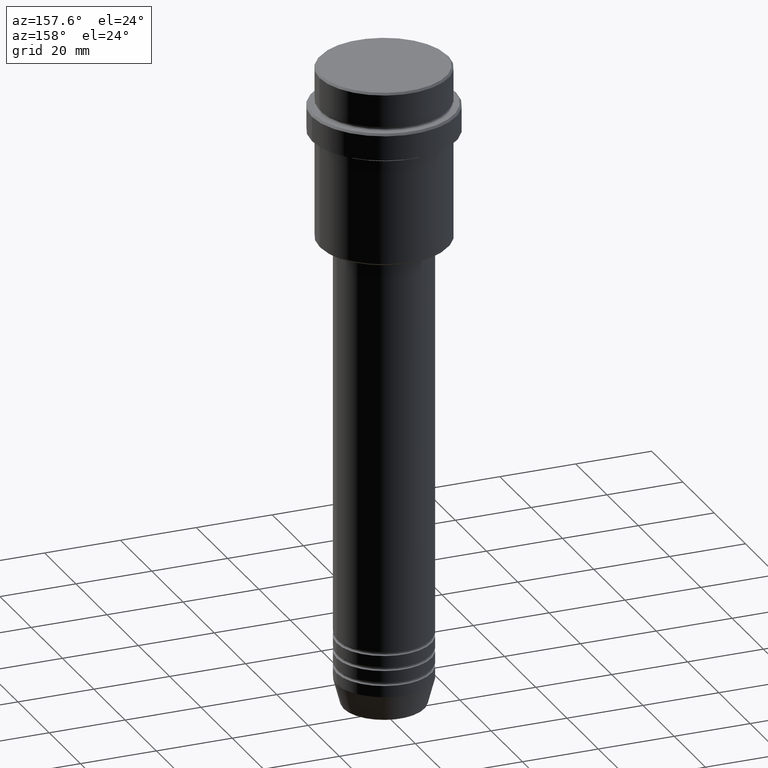
[diagram: clean part render]
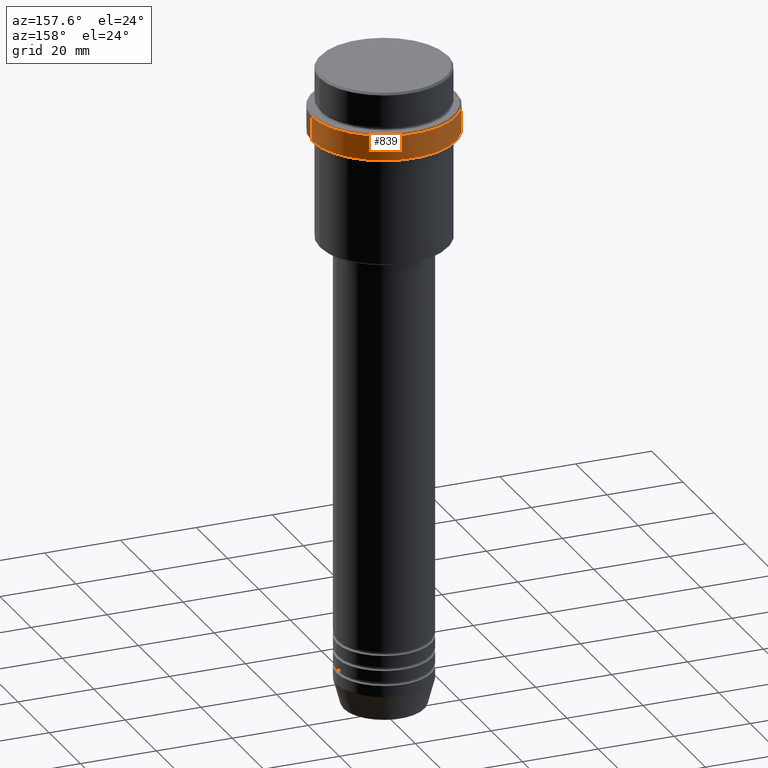
[diagram: same view with one face highlighted and labeled with its STEP entity id]
A machine part, auxiliary view. The second image highlights one B-rep face of the part: STEP entity #839.
In plain terms, the highlighted cylindrical surface (partial cylindrical patch) has radius 19 mm, axis along (-0, -0, 1).
Its self-contained STEP definition (entity closure, byte-faithful):
#7 = DIRECTION ( 'NONE',  ( 0.000000000000000000, 0.000000000000000000, -1.000000000000000000 ) ) ;
#113 = LINE ( 'NONE', #1403, #791 ) ;
#178 = VERTEX_POINT ( 'NONE', #1079 ) ;
#187 = EDGE_CURVE ( 'NONE', #178, #208, #1271, .T. ) ;
#204 = DIRECTION ( 'NONE',  ( -0.000000000000000000, -0.000000000000000000, 1.000000000000000000 ) ) ;
#208 = VERTEX_POINT ( 'NONE', #982 ) ;
#211 = VERTEX_POINT ( 'NONE', #766 ) ;
#216 = DIRECTION ( 'NONE',  ( 1.000000000000000000, 0.000000000000000000, 0.000000000000000000 ) ) ;
#259 = LINE ( 'NONE', #1371, #1410 ) ;
#280 = EDGE_LOOP ( 'NONE', ( #881, #1208, #558, #1396 ) ) ;
#300 = EDGE_CURVE ( 'NONE', #211, #208, #113, .T. ) ;
#324 = EDGE_CURVE ( 'NONE', #211, #1026, #1219, .T. ) ;
#357 = CARTESIAN_POINT ( 'NONE',  ( 0.000000000000000000, 0.000000000000000000, -17.00000000000000000 ) ) ;
#558 = ORIENTED_EDGE ( 'NONE', *, *, #187, .T. ) ;
#658 = AXIS2_PLACEMENT_3D ( 'NONE', #971, #7, #216 ) ;
#668 = DIRECTION ( 'NONE',  ( -0.000000000000000000, -0.000000000000000000, 1.000000000000000000 ) ) ;
#705 = AXIS2_PLACEMENT_3D ( 'NONE', #1351, #668, #1327 ) ;
#766 = CARTESIAN_POINT ( 'NONE',  ( 18.99999999999997868, 0.000000000000000000, -17.00000000000000000 ) ) ;
#773 = CYLINDRICAL_SURFACE ( 'NONE', #705, 18.99999999999997868 ) ;
#791 = VECTOR ( 'NONE', #204, 1000.000000000000000 ) ;
#839 = ADVANCED_FACE ( 'NONE', ( #999 ), #773, .T. ) ;
#881 = ORIENTED_EDGE ( 'NONE', *, *, #324, .T. ) ;
#964 = EDGE_CURVE ( 'NONE', #1026, #178, #259, .T. ) ;
#971 = CARTESIAN_POINT ( 'NONE',  ( 0.000000000000000000, 0.000000000000000000, -10.49999999999996092 ) ) ;
#973 = AXIS2_PLACEMENT_3D ( 'NONE', #357, #1011, #1241 ) ;
#982 = CARTESIAN_POINT ( 'NONE',  ( 18.99999999999997868, 0.000000000000000000, -10.49999999999996092 ) ) ;
#999 = FACE_OUTER_BOUND ( 'NONE', #280, .T. ) ;
#1011 = DIRECTION ( 'NONE',  ( -0.000000000000000000, -0.000000000000000000, 1.000000000000000000 ) ) ;
#1026 = VERTEX_POINT ( 'NONE', #1128 ) ;
#1029 = DIRECTION ( 'NONE',  ( -0.000000000000000000, -0.000000000000000000, 1.000000000000000000 ) ) ;
#1079 = CARTESIAN_POINT ( 'NONE',  ( -18.99999999999997868, 2.326828918379968604E-15, -10.49999999999996092 ) ) ;
#1128 = CARTESIAN_POINT ( 'NONE',  ( -18.99999999999997868, 2.326828918379968604E-15, -17.00000000000000000 ) ) ;
#1208 = ORIENTED_EDGE ( 'NONE', *, *, #964, .T. ) ;
#1219 = CIRCLE ( 'NONE', #973, 18.99999999999997868 ) ;
#1241 = DIRECTION ( 'NONE',  ( 1.000000000000000000, 0.000000000000000000, 0.000000000000000000 ) ) ;
#1271 = CIRCLE ( 'NONE', #658, 18.99999999999997868 ) ;
#1327 = DIRECTION ( 'NONE',  ( 1.000000000000000000, 0.000000000000000000, 0.000000000000000000 ) ) ;
#1351 = CARTESIAN_POINT ( 'NONE',  ( 0.000000000000000000, 0.000000000000000000, 0.000000000000000000 ) ) ;
#1371 = CARTESIAN_POINT ( 'NONE',  ( -18.99999999999997868, 2.326828918379968604E-15, 0.000000000000000000 ) ) ;
#1396 = ORIENTED_EDGE ( 'NONE', *, *, #300, .F. ) ;
#1403 = CARTESIAN_POINT ( 'NONE',  ( 18.99999999999997868, 0.000000000000000000, 0.000000000000000000 ) ) ;
#1410 = VECTOR ( 'NONE', #1029, 1000.000000000000000 ) ;